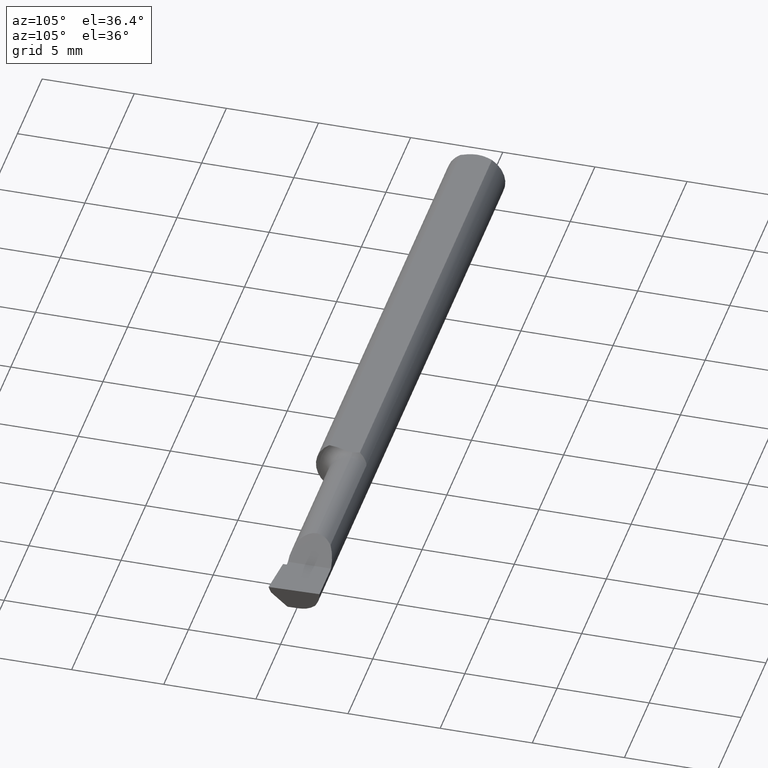
[diagram: clean part render]
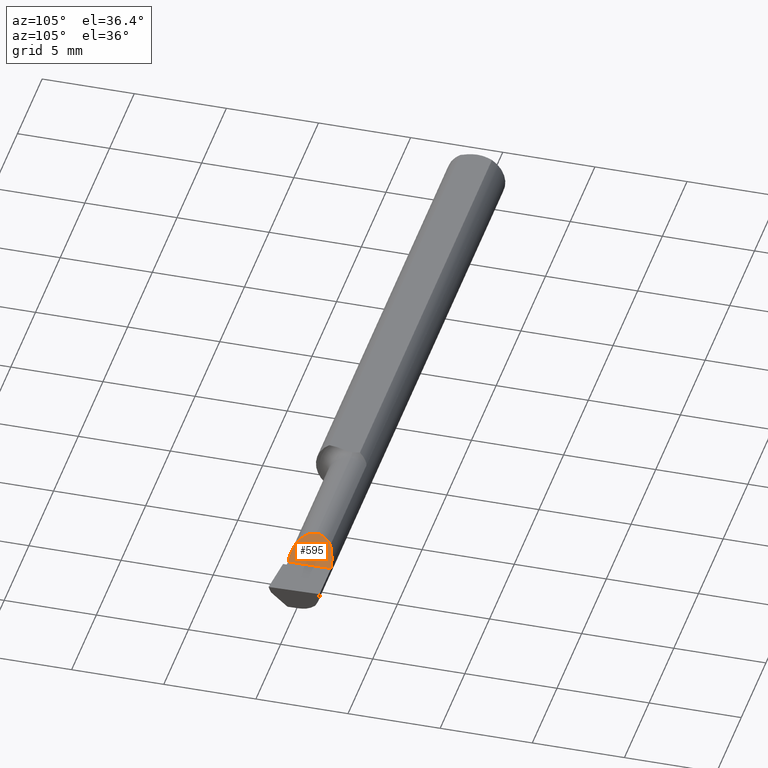
[diagram: same view with one face highlighted and labeled with its STEP entity id]
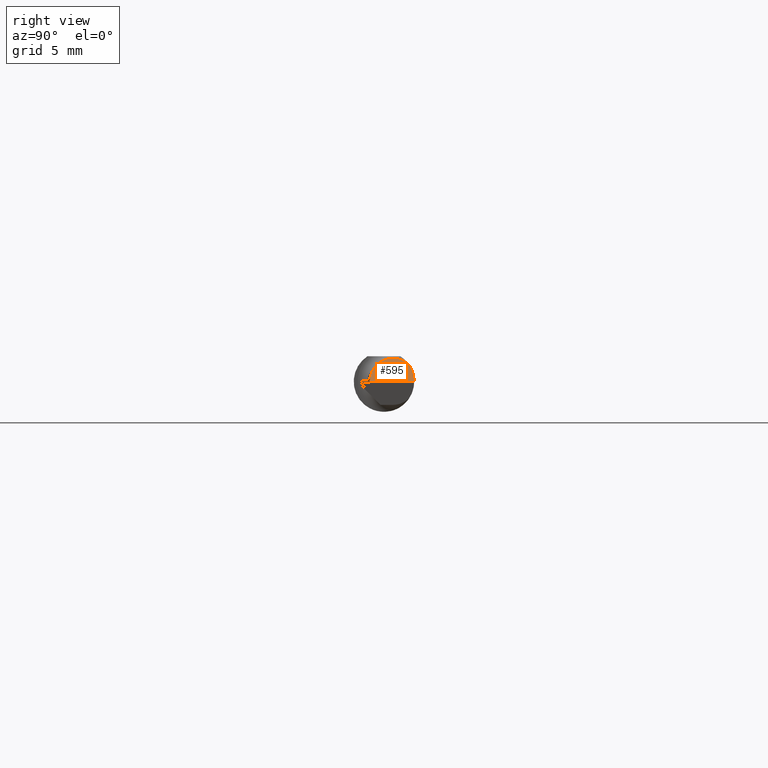
[diagram: same view with one face highlighted and labeled with its STEP entity id]
A machine part, auxiliary view. The second image highlights one B-rep face of the part: STEP entity #595.
A second angle (right view) of the same face is appended — the face is thin or edge-on in the first view.
In plain terms, the highlighted planar face has unit normal (-0.7071, 0, -0.7071).
Its self-contained STEP definition (entity closure, byte-faithful):
#23 =( BOUNDED_CURVE ( )  B_SPLINE_CURVE ( 3, ( #159, #64, #292, #393 ),
 .UNSPECIFIED., .F., .T. ) 
 B_SPLINE_CURVE_WITH_KNOTS ( ( 4, 4 ),
 ( 0.000000000000000000, 1.570796326794896780 ),
 .UNSPECIFIED. ) 
 CURVE ( )  GEOMETRIC_REPRESENTATION_ITEM ( )  RATIONAL_B_SPLINE_CURVE ( ( 1.000000000000000000, 0.8047378541243649375, 0.8047378541243649375, 1.000000000000000000 ) ) 
 REPRESENTATION_ITEM ( '' )  );
#24 = EDGE_CURVE ( 'NONE', #682, #331, #178, .T. ) ;
#62 = CARTESIAN_POINT ( 'NONE',  ( 1.370749270080770188, 0.05210000000000004211, 0.03425072991922942234 ) ) ;
#64 = CARTESIAN_POINT ( 'NONE',  ( 1.356949999999999656, -0.009747038327972792557, 0.04805000000000002325 ) ) ;
#70 = DIRECTION ( 'NONE',  ( -0.000000000000000000, 1.000000000000000000, -0.000000000000000000 ) ) ;
#120 = ORIENTED_EDGE ( 'NONE', *, *, #309, .F. ) ;
#128 = AXIS2_PLACEMENT_3D ( 'NONE', #251, #484, #243 ) ;
#159 = CARTESIAN_POINT ( 'NONE',  ( 1.356949999999999656, 0.01839999999999999969, 0.04805000000000001631 ) ) ;
#162 = CARTESIAN_POINT ( 'NONE',  ( 1.370749270080770188, 0.05210000000000004211, 0.03425072991922942234 ) ) ;
#168 = CARTESIAN_POINT ( 'NONE',  ( 1.380994055934046338, 0.05883495956508439512, 0.02400594406595350436 ) ) ;
#169 = ORIENTED_EDGE ( 'NONE', *, *, #547, .T. ) ;
#178 = LINE ( 'NONE', #352, #354 ) ;
#234 = CARTESIAN_POINT ( 'NONE',  ( 1.361790413321597892, 0.04299473640227064603, 0.04320958667840196776 ) ) ;
#242 = VERTEX_POINT ( 'NONE', #460 ) ;
#243 = DIRECTION ( 'NONE',  ( -0.7071067811865516806, 0.000000000000000000, 0.7071067811865431318 ) ) ;
#251 = CARTESIAN_POINT ( 'NONE',  ( 1.405000000000000249, -0.2500000000000000555, 1.163414459189988826E-17 ) ) ;
#288 = CARTESIAN_POINT ( 'NONE',  ( 1.405000000000000249, 0.06234999999999984999, 1.163414459189988826E-17 ) ) ;
#292 = CARTESIAN_POINT ( 'NONE',  ( 1.376852961672026865, -0.02965000000000002703, 0.02814703832797277663 ) ) ;
#295 = PLANE ( 'NONE',  #128 ) ;
#302 =( BOUNDED_CURVE ( )  B_SPLINE_CURVE ( 3, ( #62, #168, #405, #288 ),
 .UNSPECIFIED., .F., .T. ) 
 B_SPLINE_CURVE_WITH_KNOTS ( ( 4, 4 ),
 ( 0.9892340294005576018, 1.570796326794896558 ),
 .UNSPECIFIED. ) 
 CURVE ( )  GEOMETRIC_REPRESENTATION_ITEM ( )  RATIONAL_B_SPLINE_CURVE ( ( 1.000000000000000000, 0.9720134746468966913, 0.9720134746468966913, 1.000000000000000000 ) ) 
 REPRESENTATION_ITEM ( '' )  );
#305 = VERTEX_POINT ( 'NONE', #329 ) ;
#309 = EDGE_CURVE ( 'NONE', #242, #331, #302, .T. ) ;
#329 = CARTESIAN_POINT ( 'NONE',  ( 1.356949999999999656, 0.01839999999999999969, 0.04805000000000001631 ) ) ;
#331 = VERTEX_POINT ( 'NONE', #588 ) ;
#352 = CARTESIAN_POINT ( 'NONE',  ( 1.405000000000000249, -0.2500000000000000555, 1.163414459189988826E-17 ) ) ;
#354 = VECTOR ( 'NONE', #70, 39.37007874015748143 ) ;
#379 = ORIENTED_EDGE ( 'NONE', *, *, #551, .T. ) ;
#393 = CARTESIAN_POINT ( 'NONE',  ( 1.405000000000000249, -0.02965000000000005131, 1.163414459189988826E-17 ) ) ;
#395 = CARTESIAN_POINT ( 'NONE',  ( 1.405000000000000249, -0.02965000000000005131, 1.163414459189988826E-17 ) ) ;
#405 = CARTESIAN_POINT ( 'NONE',  ( 1.392739685260042659, 0.06234999999999999570, 0.01226031473995687834 ) ) ;
#460 = CARTESIAN_POINT ( 'NONE',  ( 1.370749270080770188, 0.05210000000000004211, 0.03425072991922942234 ) ) ;
#484 = DIRECTION ( 'NONE',  ( -0.7071067811865432429, 0.000000000000000000, -0.7071067811865517916 ) ) ;
#490 =( BOUNDED_CURVE ( )  B_SPLINE_CURVE ( 3, ( #162, #234, #627, #689 ),
 .UNSPECIFIED., .F., .T. ) 
 B_SPLINE_CURVE_WITH_KNOTS ( ( 4, 4 ),
 ( 5.505891808169000257, 6.283185307179586232 ),
 .UNSPECIFIED. ) 
 CURVE ( )  GEOMETRIC_REPRESENTATION_ITEM ( )  RATIONAL_B_SPLINE_CURVE ( ( 1.000000000000000000, 0.9502818019828911389, 0.9502818019828911389, 1.000000000000000000 ) ) 
 REPRESENTATION_ITEM ( '' )  );
#547 = EDGE_CURVE ( 'NONE', #305, #682, #23, .T. ) ;
#551 = EDGE_CURVE ( 'NONE', #242, #305, #490, .T. ) ;
#588 = CARTESIAN_POINT ( 'NONE',  ( 1.405000000000000249, 0.06234999999999984999, 1.163414459189988826E-17 ) ) ;
#595 = ADVANCED_FACE ( 'NONE', ( #721 ), #295, .F. ) ;
#607 = ORIENTED_EDGE ( 'NONE', *, *, #24, .T. ) ;
#627 = CARTESIAN_POINT ( 'NONE',  ( 1.356949999999999656, 0.03117368152160946565, 0.04805000000000002325 ) ) ;
#635 = EDGE_LOOP ( 'NONE', ( #120, #379, #169, #607 ) ) ;
#682 = VERTEX_POINT ( 'NONE', #395 ) ;
#689 = CARTESIAN_POINT ( 'NONE',  ( 1.356949999999999656, 0.01839999999999999969, 0.04805000000000001631 ) ) ;
#721 = FACE_OUTER_BOUND ( 'NONE', #635, .T. ) ;